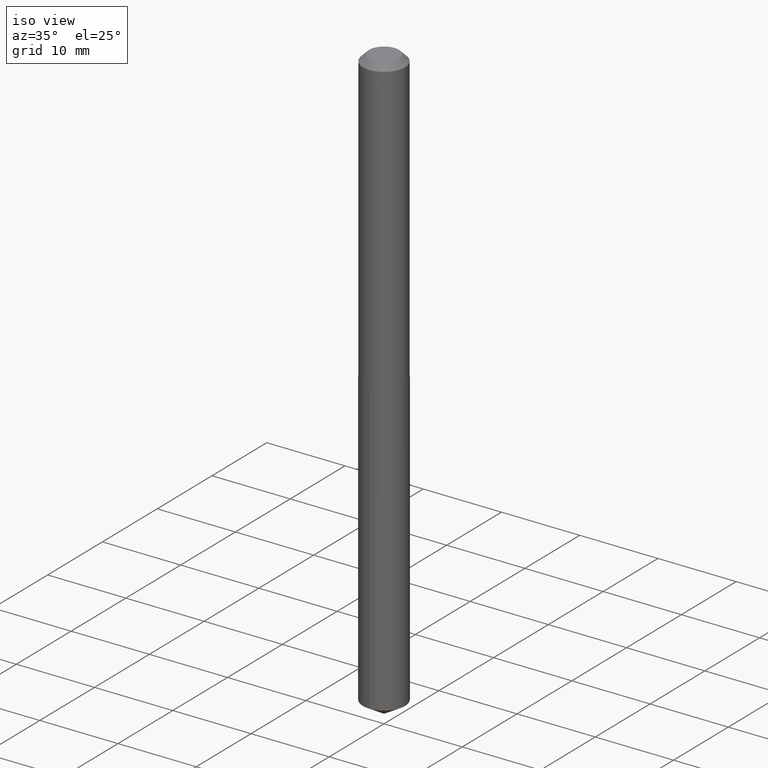
[diagram: clean part render]
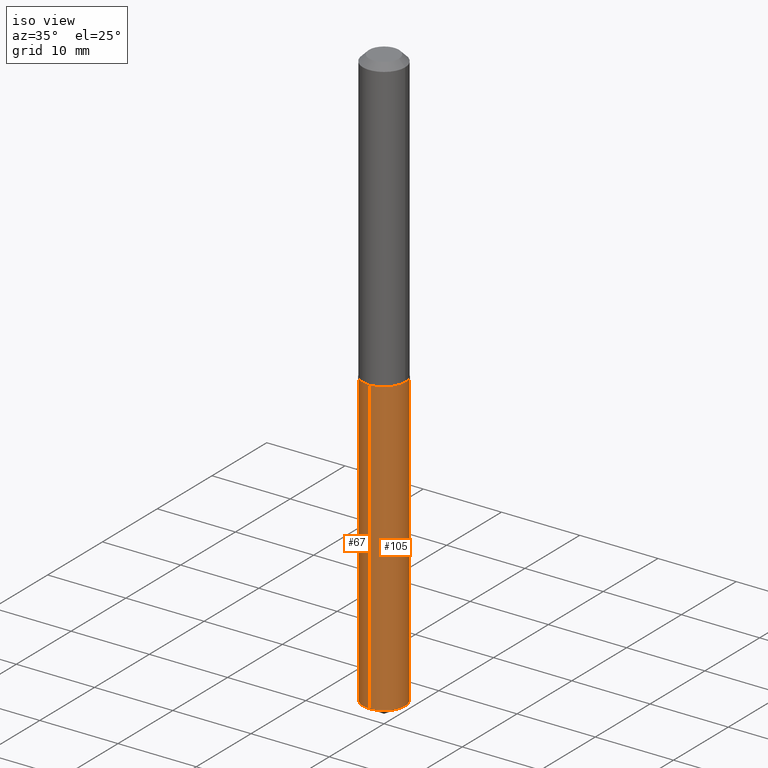
[diagram: same view with one multi-face feature highlighted, each face labeled with its STEP entity id]
A machine part, iso view. The highlighted faces form ONE feature: a constant-radius fillet chain: 2 tangent blend faces with common blend radius 2.7051 mm. The faces share edges in the B-rep.
Their STEP definitions:
[1] entity #105 (Cylinder):
#2 = DIRECTION ( 'NONE',  ( -2.441767001978232702E-29, 3.496782533161042889E-15, 1.000000000000000000 ) ) ;
#3 = VECTOR ( 'NONE', #383, 39.37007874015748143 ) ;
#14 = CARTESIAN_POINT ( 'NONE',  ( -7.436855251735515470E-16, -0.1065000000000051045, -1.462999999999999856 ) ) ;
#15 = VERTEX_POINT ( 'NONE', #176 ) ;
#19 = EDGE_CURVE ( 'NONE', #15, #179, #357, .T. ) ;
#36 = CARTESIAN_POINT ( 'NONE',  ( 7.567280135845785648E-16, 0.1064999999999948904, -1.463000000000000522 ) ) ;
#41 = DIRECTION ( 'NONE',  ( -6.982962677686265133E-15, -1.000000000000000000, 2.565115487008698002E-15 ) ) ;
#46 = ORIENTED_EDGE ( 'NONE', *, *, #56, .T. ) ;
#56 = EDGE_CURVE ( 'NONE', #15, #84, #314, .T. ) ;
#57 = AXIS2_PLACEMENT_3D ( 'NONE', #373, #369, #41 ) ;
#84 = VERTEX_POINT ( 'NONE', #242 ) ;
#85 = DIRECTION ( 'NONE',  ( -2.441767001978232421E-29, 3.496782533161042889E-15, 1.000000000000000000 ) ) ;
#87 = CARTESIAN_POINT ( 'NONE',  ( 3.577720863448855523E-29, -5.108037198727522968E-15, -1.463000000000000300 ) ) ;
#92 = CARTESIAN_POINT ( 'NONE',  ( 7.174464031646285139E-29, -1.025882704748443620E-14, -2.936008344073565368 ) ) ;
#105 = ADVANCED_FACE ( 'NONE', ( #335 ), #303, .T. ) ;
#107 = VERTEX_POINT ( 'NONE', #36 ) ;
#117 = DIRECTION ( 'NONE',  ( -6.982962677686265133E-15, -1.000000000000000000, 2.565115487008698002E-15 ) ) ;
#118 = ORIENTED_EDGE ( 'NONE', *, *, #19, .F. ) ;
#120 = DIRECTION ( 'NONE',  ( -6.982962677686265133E-15, -1.000000000000000000, 5.130230974017396004E-15 ) ) ;
#132 = CIRCLE ( 'NONE', #351, 0.1064999999999999974 ) ;
#147 = CARTESIAN_POINT ( 'NONE',  ( 7.567280135845422772E-16, 0.1064999999999948904, -1.463000000000000522 ) ) ;
#159 = ORIENTED_EDGE ( 'NONE', *, *, #390, .F. ) ;
#171 = DIRECTION ( 'NONE',  ( -2.441767001978232702E-29, 3.496782533161042889E-15, 1.000000000000000000 ) ) ;
#176 = CARTESIAN_POINT ( 'NONE',  ( -7.436855251735155552E-16, -0.1065000000000102531, -2.936008344073564924 ) ) ;
#179 = VERTEX_POINT ( 'NONE', #14 ) ;
#194 = ORIENTED_EDGE ( 'NONE', *, *, #366, .T. ) ;
#234 = LINE ( 'NONE', #147, #359 ) ;
#242 = CARTESIAN_POINT ( 'NONE',  ( 7.567280135845780717E-16, 0.1064999999999897140, -2.936008344073565812 ) ) ;
#289 = CARTESIAN_POINT ( 'NONE',  ( -7.436855251735515470E-16, -0.1065000000000051045, -1.462999999999999856 ) ) ;
#303 = CYLINDRICAL_SURFACE ( 'NONE', #57, 0.1064999999999999974 ) ;
#314 = CIRCLE ( 'NONE', #350, 0.1064999999999999974 ) ;
#335 = FACE_OUTER_BOUND ( 'NONE', #378, .T. ) ;
#350 = AXIS2_PLACEMENT_3D ( 'NONE', #92, #2, #120 ) ;
#351 = AXIS2_PLACEMENT_3D ( 'NONE', #87, #171, #117 ) ;
#357 = LINE ( 'NONE', #289, #3 ) ;
#359 = VECTOR ( 'NONE', #85, 39.37007874015748143 ) ;
#366 = EDGE_CURVE ( 'NONE', #84, #107, #234, .T. ) ;
#369 = DIRECTION ( 'NONE',  ( -2.441767001978232702E-29, 3.496782533161042889E-15, 1.000000000000000000 ) ) ;
#373 = CARTESIAN_POINT ( 'NONE',  ( 3.577720863448855523E-29, -5.108037198727522968E-15, -1.463000000000000300 ) ) ;
#378 = EDGE_LOOP ( 'NONE', ( #46, #194, #159, #118 ) ) ;
#383 = DIRECTION ( 'NONE',  ( -2.441767001978232421E-29, 3.496782533161042889E-15, 1.000000000000000000 ) ) ;
#390 = EDGE_CURVE ( 'NONE', #179, #107, #132, .T. ) ;
[2] entity #67 (Cylinder):
#3 = VECTOR ( 'NONE', #383, 39.37007874015748143 ) ;
#14 = CARTESIAN_POINT ( 'NONE',  ( -7.436855251735515470E-16, -0.1065000000000051045, -1.462999999999999856 ) ) ;
#15 = VERTEX_POINT ( 'NONE', #176 ) ;
#19 = EDGE_CURVE ( 'NONE', #15, #179, #357, .T. ) ;
#36 = CARTESIAN_POINT ( 'NONE',  ( 7.567280135845785648E-16, 0.1064999999999948904, -1.463000000000000522 ) ) ;
#39 = CIRCLE ( 'NONE', #81, 0.1064999999999999974 ) ;
#64 = CARTESIAN_POINT ( 'NONE',  ( 7.174464031646285139E-29, -1.025882704748443620E-14, -2.936008344073565368 ) ) ;
#67 = ADVANCED_FACE ( 'NONE', ( #113 ), #205, .T. ) ;
#81 = AXIS2_PLACEMENT_3D ( 'NONE', #191, #162, #137 ) ;
#84 = VERTEX_POINT ( 'NONE', #242 ) ;
#85 = DIRECTION ( 'NONE',  ( -2.441767001978232421E-29, 3.496782533161042889E-15, 1.000000000000000000 ) ) ;
#88 = AXIS2_PLACEMENT_3D ( 'NONE', #182, #173, #297 ) ;
#107 = VERTEX_POINT ( 'NONE', #36 ) ;
#113 = FACE_OUTER_BOUND ( 'NONE', #327, .T. ) ;
#137 = DIRECTION ( 'NONE',  ( -6.982962677686265133E-15, -1.000000000000000000, 2.565115487008698002E-15 ) ) ;
#146 = ORIENTED_EDGE ( 'NONE', *, *, #19, .T. ) ;
#147 = CARTESIAN_POINT ( 'NONE',  ( 7.567280135845422772E-16, 0.1064999999999948904, -1.463000000000000522 ) ) ;
#151 = CIRCLE ( 'NONE', #301, 0.1064999999999999974 ) ;
#162 = DIRECTION ( 'NONE',  ( -2.441767001978232702E-29, 3.496782533161042889E-15, 1.000000000000000000 ) ) ;
#173 = DIRECTION ( 'NONE',  ( -2.441767001978232702E-29, 3.496782533161042889E-15, 1.000000000000000000 ) ) ;
#176 = CARTESIAN_POINT ( 'NONE',  ( -7.436855251735155552E-16, -0.1065000000000102531, -2.936008344073564924 ) ) ;
#177 = DIRECTION ( 'NONE',  ( -2.441767001978232702E-29, 3.496782533161042889E-15, 1.000000000000000000 ) ) ;
#179 = VERTEX_POINT ( 'NONE', #14 ) ;
#182 = CARTESIAN_POINT ( 'NONE',  ( 3.577720863448855523E-29, -5.108037198727522968E-15, -1.463000000000000300 ) ) ;
#189 = ORIENTED_EDGE ( 'NONE', *, *, #366, .F. ) ;
#190 = ORIENTED_EDGE ( 'NONE', *, *, #325, .T. ) ;
#191 = CARTESIAN_POINT ( 'NONE',  ( 3.577720863448855523E-29, -5.108037198727522968E-15, -1.463000000000000300 ) ) ;
#205 = CYLINDRICAL_SURFACE ( 'NONE', #88, 0.1064999999999999974 ) ;
#234 = LINE ( 'NONE', #147, #359 ) ;
#237 = EDGE_CURVE ( 'NONE', #107, #179, #39, .T. ) ;
#242 = CARTESIAN_POINT ( 'NONE',  ( 7.567280135845780717E-16, 0.1064999999999897140, -2.936008344073565812 ) ) ;
#289 = CARTESIAN_POINT ( 'NONE',  ( -7.436855251735515470E-16, -0.1065000000000051045, -1.462999999999999856 ) ) ;
#297 = DIRECTION ( 'NONE',  ( -6.982962677686265133E-15, -1.000000000000000000, 2.565115487008698002E-15 ) ) ;
#298 = DIRECTION ( 'NONE',  ( -6.982962677686265133E-15, -1.000000000000000000, 5.130230974017396004E-15 ) ) ;
#301 = AXIS2_PLACEMENT_3D ( 'NONE', #64, #177, #298 ) ;
#325 = EDGE_CURVE ( 'NONE', #84, #15, #151, .T. ) ;
#327 = EDGE_LOOP ( 'NONE', ( #189, #190, #146, #354 ) ) ;
#354 = ORIENTED_EDGE ( 'NONE', *, *, #237, .F. ) ;
#357 = LINE ( 'NONE', #289, #3 ) ;
#359 = VECTOR ( 'NONE', #85, 39.37007874015748143 ) ;
#366 = EDGE_CURVE ( 'NONE', #84, #107, #234, .T. ) ;
#383 = DIRECTION ( 'NONE',  ( -2.441767001978232421E-29, 3.496782533161042889E-15, 1.000000000000000000 ) ) ;